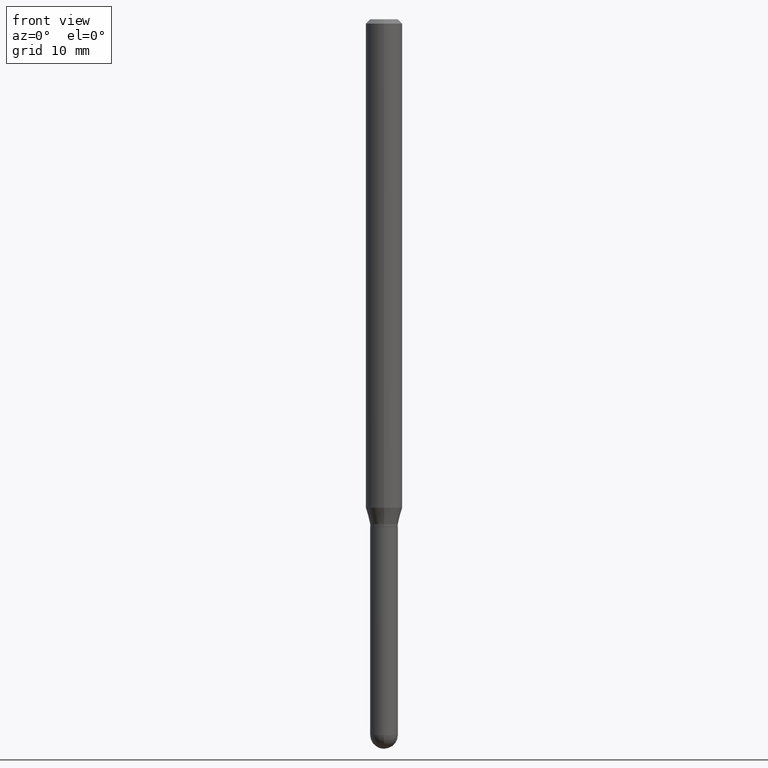
[diagram: clean part render]
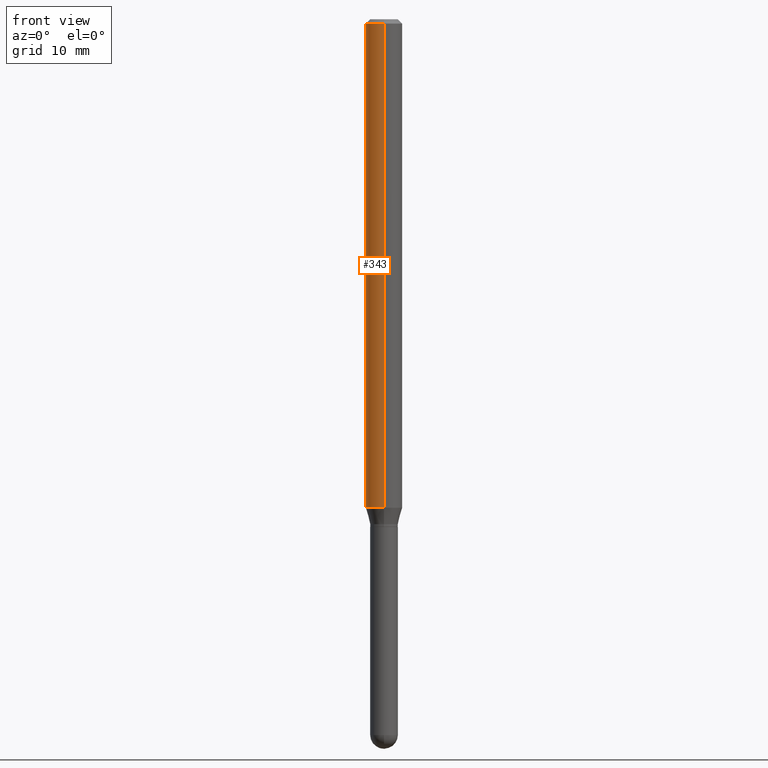
[diagram: same view with one face highlighted and labeled with its STEP entity id]
A machine part, front view. The second image highlights one B-rep face of the part: STEP entity #343.
In plain terms, the highlighted cylindrical surface (edge-blend (fillet) strip) has radius 1.5875 mm, axis along (-0, 0, 1).
Its self-contained STEP definition (entity closure, byte-faithful):
#6 = AXIS2_PLACEMENT_3D ( 'NONE', #91, #495, #99 ) ;
#10 = ORIENTED_EDGE ( 'NONE', *, *, #137, .T. ) ;
#32 = CARTESIAN_POINT ( 'NONE',  ( 4.440892098501036369E-16, 0.06249999999999418521, -1.674019237886466227 ) ) ;
#43 = CYLINDRICAL_SURFACE ( 'NONE', #116, 0.06250000000000000000 ) ;
#45 = CARTESIAN_POINT ( 'NONE',  ( -4.364351673553916201E-16, -0.06250000000000000000, 2.182179900900756299E-16 ) ) ;
#82 = DIRECTION ( 'NONE',  ( -2.445464265445177079E-29, 3.491487841441210472E-15, 1.000000000000000000 ) ) ;
#91 = CARTESIAN_POINT ( 'NONE',  ( 3.668196398167768421E-31, -5.237231762161818937E-17, -0.01500000000000000812 ) ) ;
#98 = CIRCLE ( 'NONE', #440, 0.06250000000000000000 ) ;
#99 = DIRECTION ( 'NONE',  ( -6.982962677686265922E-15, -1.000000000000000000, 3.483106191921935554E-15 ) ) ;
#114 = CARTESIAN_POINT ( 'NONE',  ( 4.440892098500625669E-16, 0.06250000000000000000, -2.182179900900756299E-16 ) ) ;
#115 = CARTESIAN_POINT ( 'NONE',  ( -4.364351673553912750E-16, -0.06250000000000005551, -0.01499999999999979128 ) ) ;
#116 = AXIS2_PLACEMENT_3D ( 'NONE', #347, #353, #122 ) ;
#121 = CARTESIAN_POINT ( 'NONE',  ( 4.440892098501038342E-16, 0.06249999999999995143, -0.01500000000000022669 ) ) ;
#122 = DIRECTION ( 'NONE',  ( -6.982962677686265922E-15, -1.000000000000000000, 3.491487841441210078E-15 ) ) ;
#137 = EDGE_CURVE ( 'NONE', #394, #446, #190, .T. ) ;
#138 = DIRECTION ( 'NONE',  ( -2.445464265445177359E-29, 3.491487841441210078E-15, 1.000000000000000000 ) ) ;
#165 = ORIENTED_EDGE ( 'NONE', *, *, #402, .F. ) ;
#190 = LINE ( 'NONE', #45, #350 ) ;
#206 = VECTOR ( 'NONE', #82, 39.37007874015748143 ) ;
#276 = VERTEX_POINT ( 'NONE', #32 ) ;
#280 = ORIENTED_EDGE ( 'NONE', *, *, #454, .F. ) ;
#282 = CARTESIAN_POINT ( 'NONE',  ( 4.093754225919121089E-29, -5.844817815419276990E-15, -1.674019237886465783 ) ) ;
#287 = ORIENTED_EDGE ( 'NONE', *, *, #483, .T. ) ;
#343 = ADVANCED_FACE ( 'NONE', ( #441 ), #43, .T. ) ;
#345 = EDGE_LOOP ( 'NONE', ( #165, #287, #10, #280 ) ) ;
#347 = CARTESIAN_POINT ( 'NONE',  ( 0.000000000000000000, 0.000000000000000000, 0.000000000000000000 ) ) ;
#349 = CARTESIAN_POINT ( 'NONE',  ( -4.364351673553505007E-16, -0.06250000000000581479, -1.674019237886465561 ) ) ;
#350 = VECTOR ( 'NONE', #354, 39.37007874015748143 ) ;
#353 = DIRECTION ( 'NONE',  ( -2.445464265445177359E-29, 3.491487841441210078E-15, 1.000000000000000000 ) ) ;
#354 = DIRECTION ( 'NONE',  ( -2.445464265445177079E-29, 3.491487841441210472E-15, 1.000000000000000000 ) ) ;
#362 = VERTEX_POINT ( 'NONE', #121 ) ;
#363 = DIRECTION ( 'NONE',  ( -6.982962677686265922E-15, -1.000000000000000000, 4.370956789862821150E-15 ) ) ;
#394 = VERTEX_POINT ( 'NONE', #349 ) ;
#395 = LINE ( 'NONE', #114, #206 ) ;
#402 = EDGE_CURVE ( 'NONE', #276, #362, #395, .T. ) ;
#417 = CIRCLE ( 'NONE', #6, 0.06250000000000000000 ) ;
#440 = AXIS2_PLACEMENT_3D ( 'NONE', #282, #138, #363 ) ;
#441 = FACE_OUTER_BOUND ( 'NONE', #345, .T. ) ;
#446 = VERTEX_POINT ( 'NONE', #115 ) ;
#454 = EDGE_CURVE ( 'NONE', #362, #446, #417, .T. ) ;
#483 = EDGE_CURVE ( 'NONE', #276, #394, #98, .T. ) ;
#495 = DIRECTION ( 'NONE',  ( -2.445464265445177359E-29, 3.491487841441210078E-15, 1.000000000000000000 ) ) ;